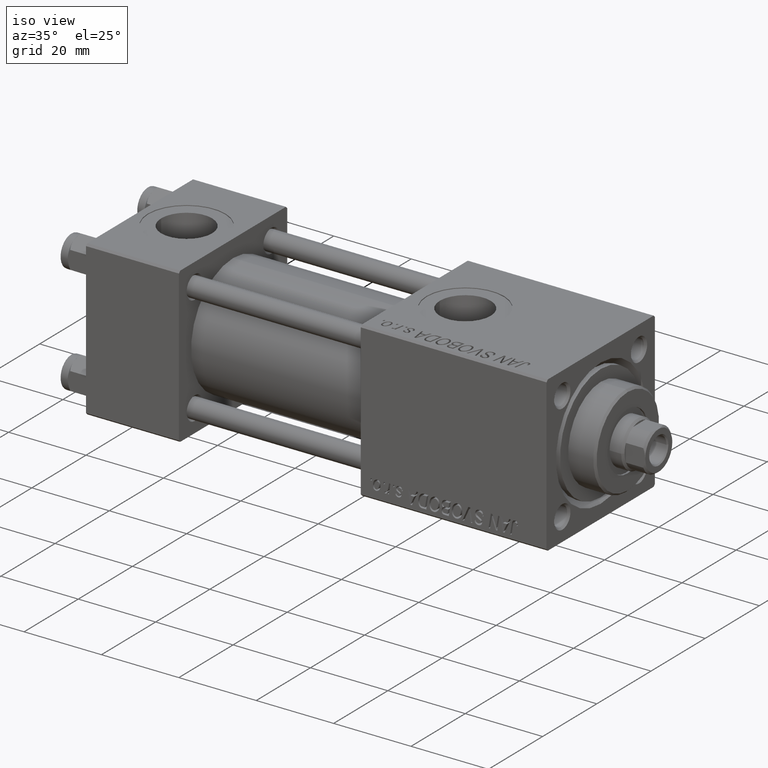
[diagram: clean part render]
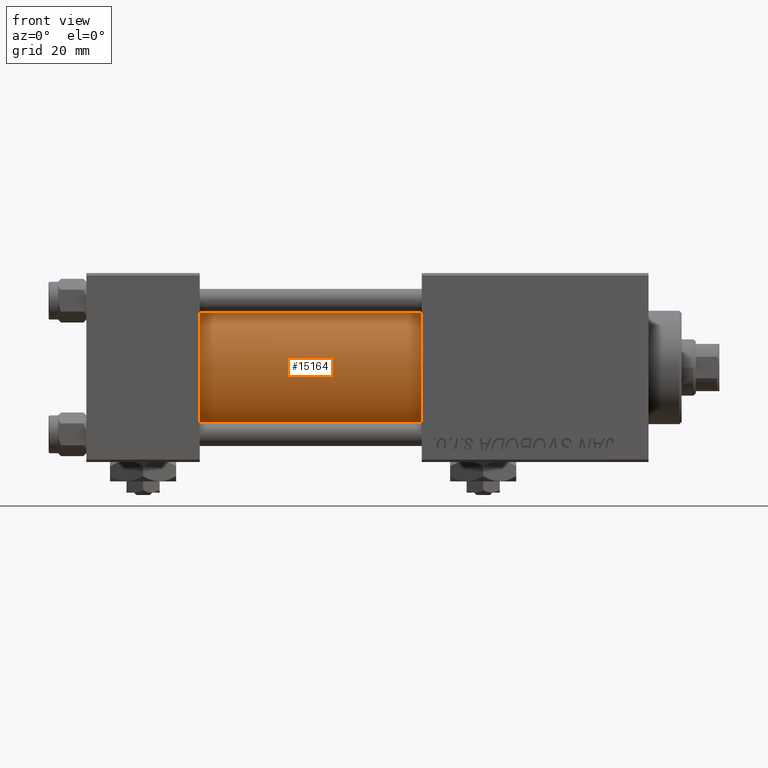
[diagram: tour spotlight — one face highlighted and labeled with its STEP entity id]
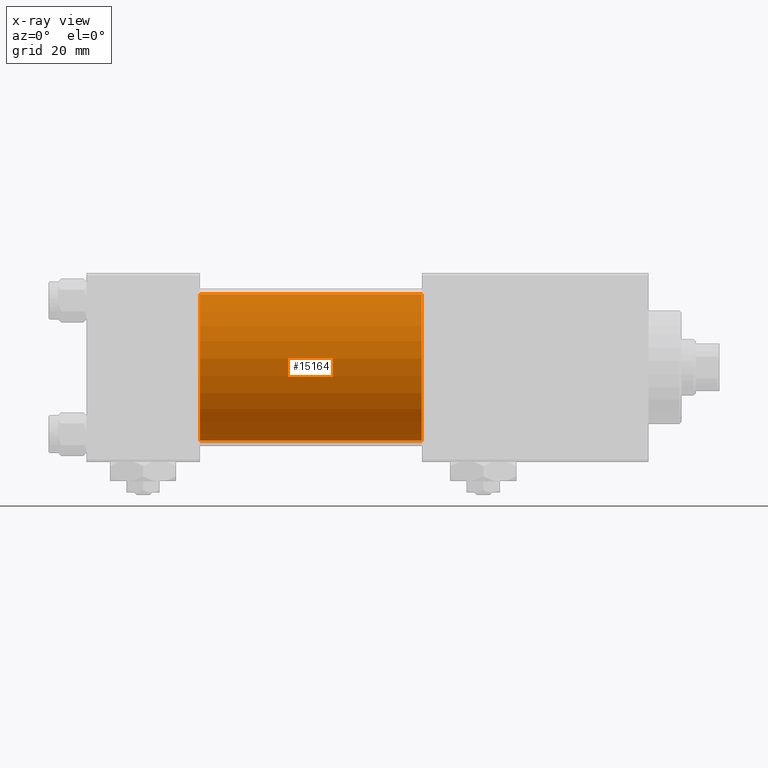
[diagram: x-ray of the same camera — body ghosted, this tour face saturated]
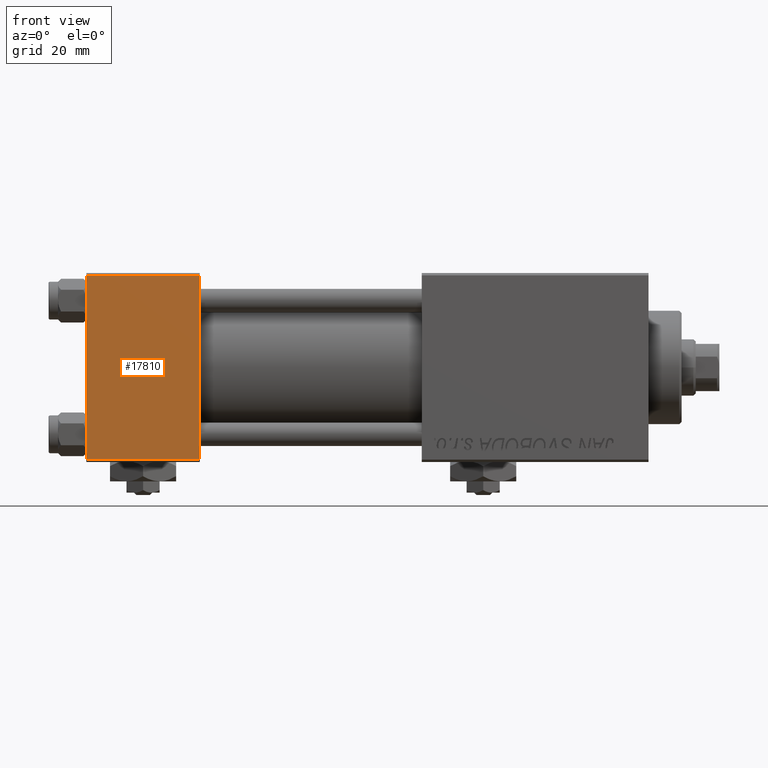
[diagram: tour spotlight — one face highlighted and labeled with its STEP entity id]
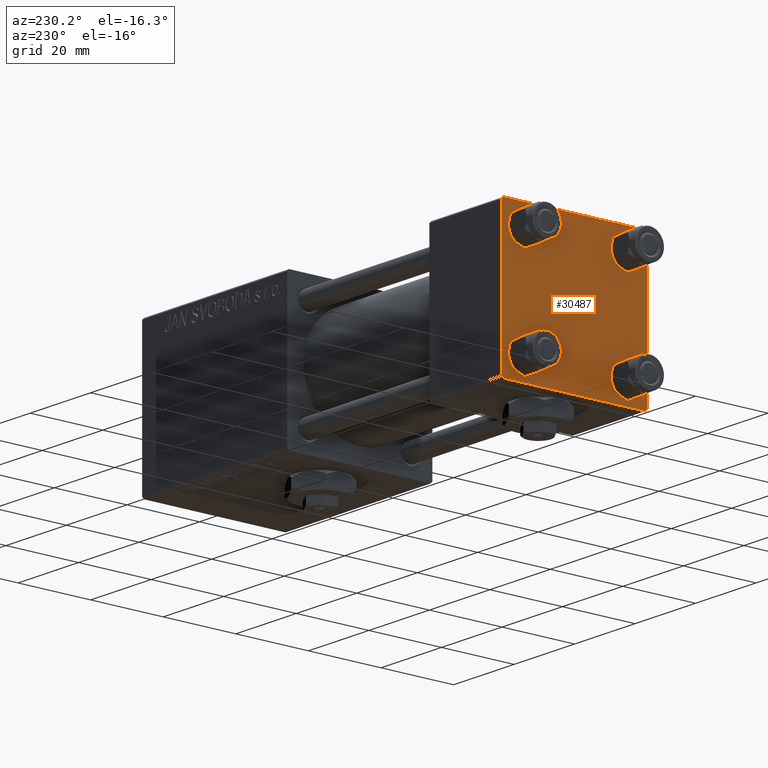
[diagram: tour spotlight — one face highlighted and labeled with its STEP entity id]
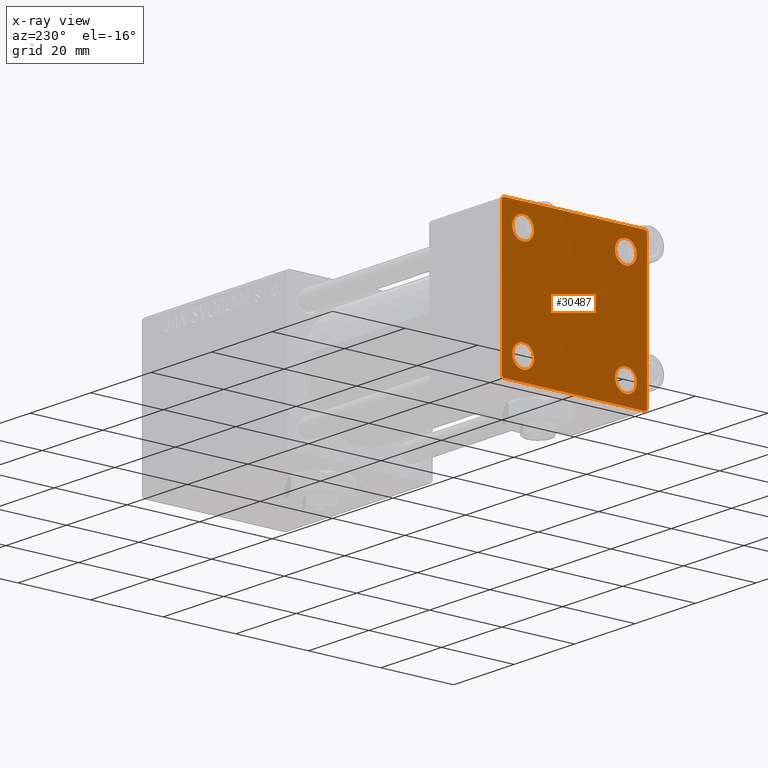
[diagram: x-ray of the same camera — body ghosted, this tour face saturated]
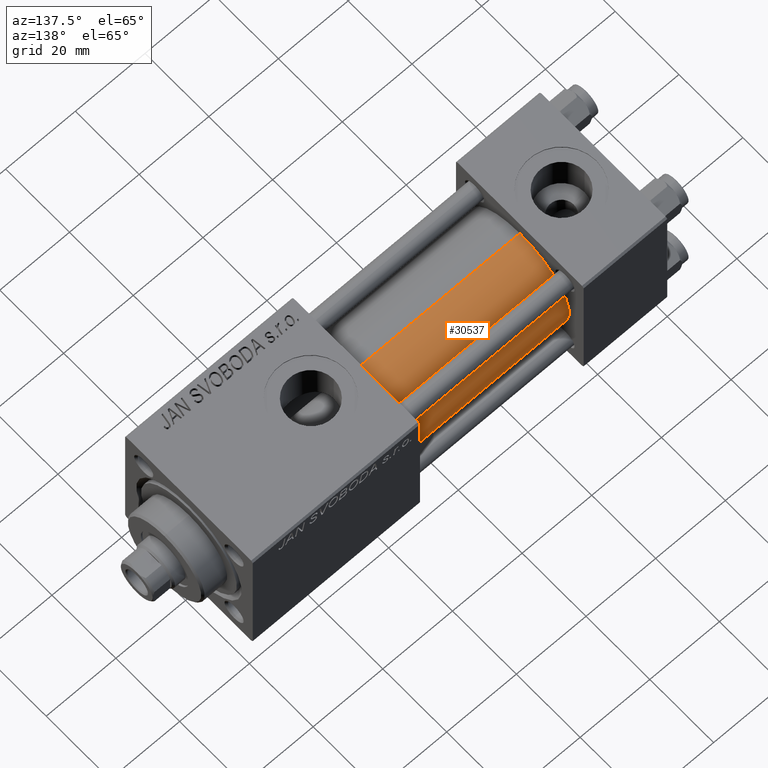
[diagram: tour spotlight — one face highlighted and labeled with its STEP entity id]
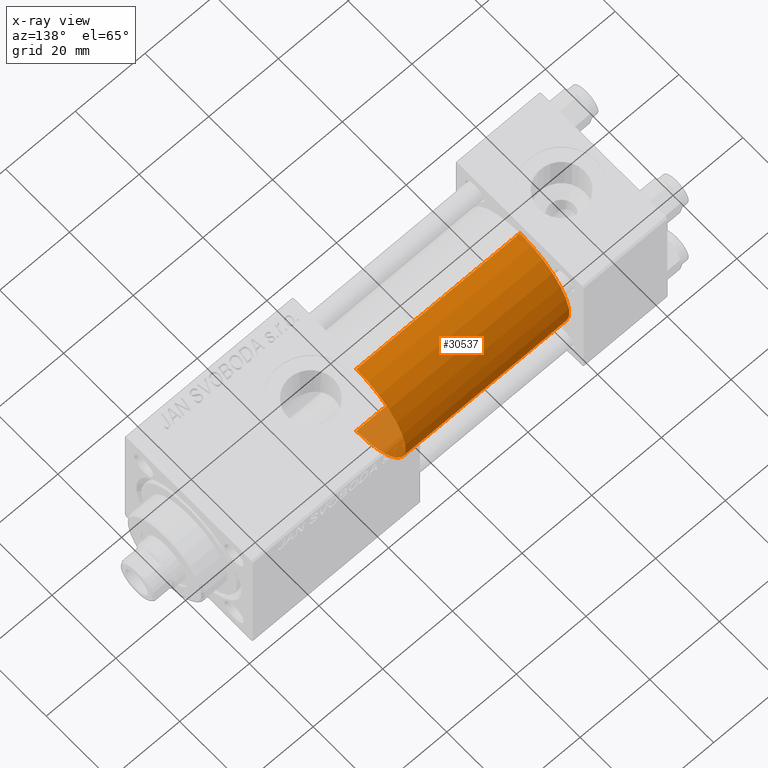
[diagram: x-ray of the same camera — body ghosted, this tour face saturated]
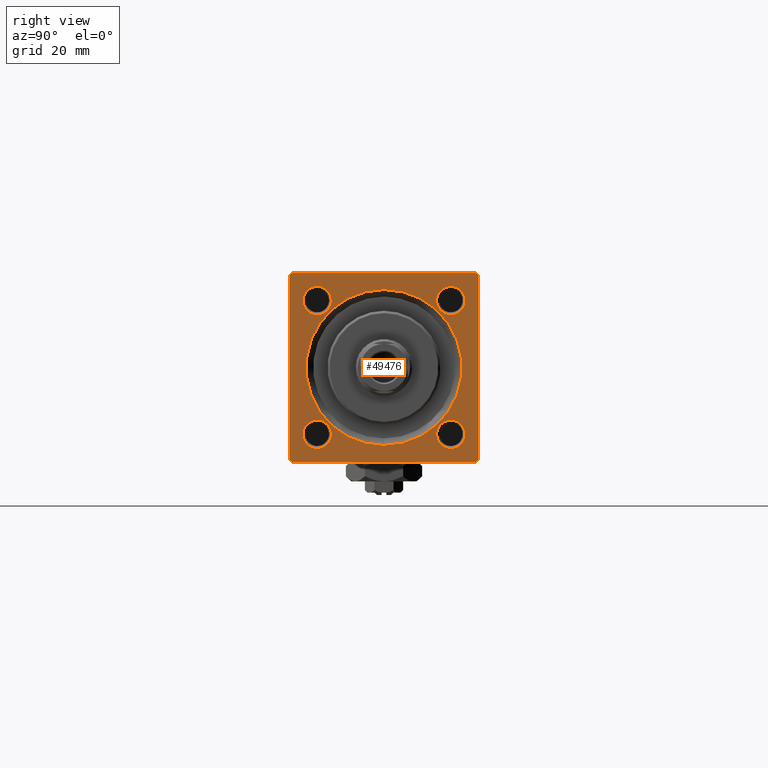
[diagram: tour spotlight — one face highlighted and labeled with its STEP entity id]
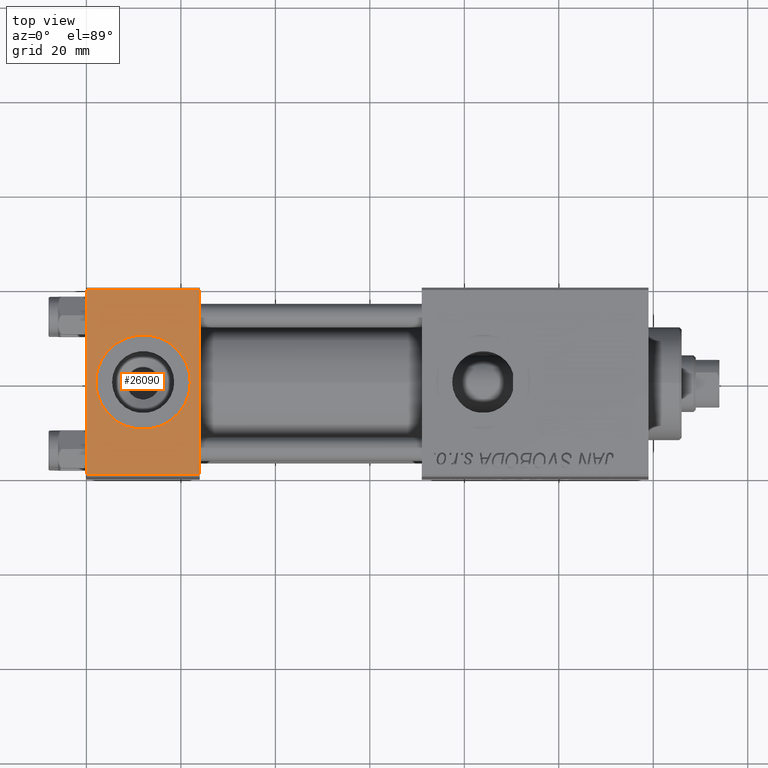
[diagram: tour spotlight — one face highlighted and labeled with its STEP entity id]
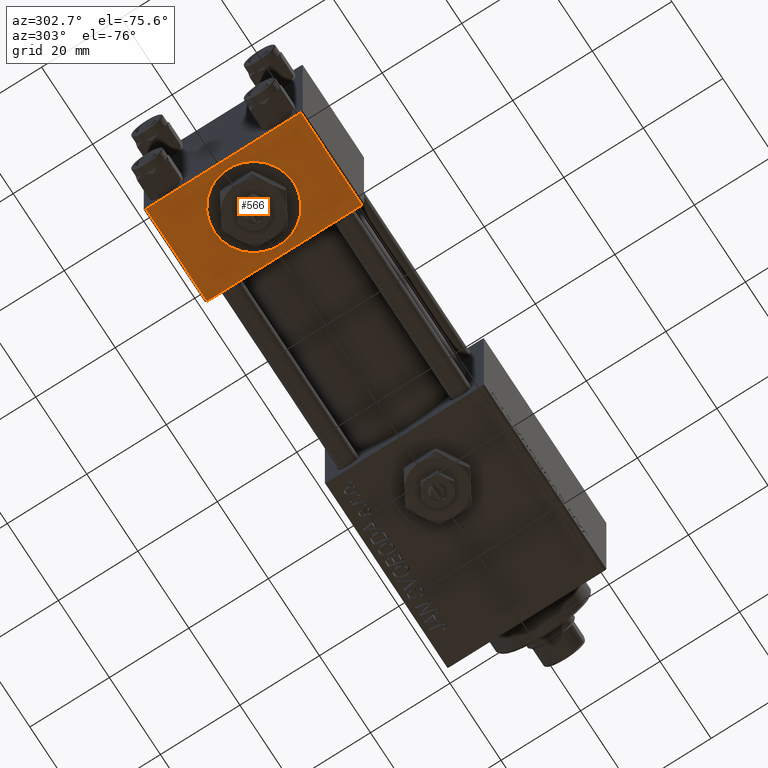
[diagram: tour spotlight — one face highlighted and labeled with its STEP entity id]
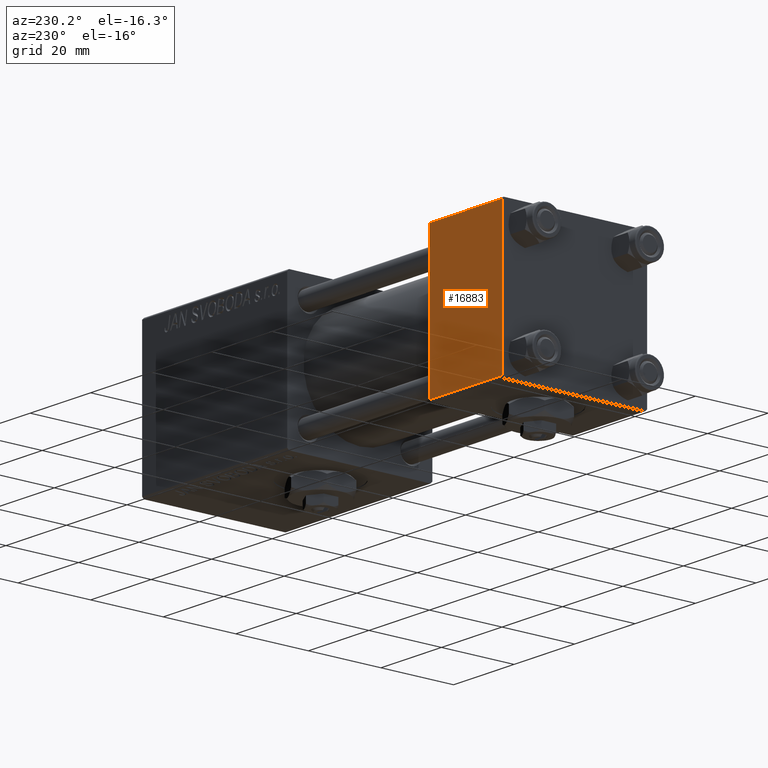
[diagram: tour spotlight — one face highlighted and labeled with its STEP entity id]
A machine part: a face-by-face anatomy tour. The part has 1248 B-rep faces; the first image is the clean iso view, then the 8 largest visible faces are spotlighted one at a time (largest first), each with its STEP entity span.

Face 1 — front view, entity #15164. An x-ray twin of the same camera follows (body ghosted, this face saturated) — the face is partly hidden behind the body. In plain terms, the highlighted cylindrical surface (partial cylindrical patch) has radius 15.5 mm, axis along (-1, -0, -0).
Definition (entity closure, byte-faithful):
#1867 = CIRCLE ( 'NONE', #42285, 15.50000000000000000 ) ;
#2436 = VERTEX_POINT ( 'NONE', #32975 ) ;
#3613 = EDGE_CURVE ( 'NONE', #3770, #37936, #49331, .T. ) ;
#3770 = VERTEX_POINT ( 'NONE', #31110 ) ;
#5019 = CARTESIAN_POINT ( 'NONE',  ( 71.00000000000001421, -2.602085213965210642E-15, 0.000000000000000000 ) ) ;
#6408 = DIRECTION ( 'NONE',  ( 0.000000000000000000, 0.000000000000000000, 1.000000000000000000 ) ) ;
#8446 = DIRECTION ( 'NONE',  ( 1.000000000000000000, 0.000000000000000000, 0.000000000000000000 ) ) ;
#8574 = ORIENTED_EDGE ( 'NONE', *, *, #15529, .T. ) ;
#10115 = CARTESIAN_POINT ( 'NONE',  ( 71.00000000000001421, -2.602085213965210642E-15, 0.000000000000000000 ) ) ;
#11541 = DIRECTION ( 'NONE',  ( 1.000000000000000000, 0.000000000000000000, 0.000000000000000000 ) ) ;
#12766 = ORIENTED_EDGE ( 'NONE', *, *, #3613, .T. ) ;
#14003 = CARTESIAN_POINT ( 'NONE',  ( 71.00000000000001421, -7.038826752868131828E-16, -15.50000000000000000 ) ) ;
#14237 = EDGE_CURVE ( 'NONE', #50098, #2436, #40903, .T. ) ;
#15164 = ADVANCED_FACE ( 'NONE', ( #33847 ), #18552, .T. ) ;
#15233 = VECTOR ( 'NONE', #30085, 1000.000000000000000 ) ;
#15529 = EDGE_CURVE ( 'NONE', #37936, #2436, #39611, .T. ) ;
#17439 = CARTESIAN_POINT ( 'NONE',  ( 71.00000000000001421, -2.602085213965210642E-15, 15.50000000000000000 ) ) ;
#18552 = CYLINDRICAL_SURFACE ( 'NONE', #22724, 15.50000000000000000 ) ;
#20072 = EDGE_CURVE ( 'NONE', #3770, #50098, #1867, .T. ) ;
#22724 = AXIS2_PLACEMENT_3D ( 'NONE', #10115, #45987, #6408 ) ;
#23293 = EDGE_LOOP ( 'NONE', ( #36461, #48030, #12766, #8574 ) ) ;
#29017 = DIRECTION ( 'NONE',  ( 0.000000000000000000, 0.000000000000000000, -1.000000000000000000 ) ) ;
#29194 = VECTOR ( 'NONE', #34279, 1000.000000000000000 ) ;
#30085 = DIRECTION ( 'NONE',  ( -1.000000000000000000, -0.000000000000000000, -0.000000000000000000 ) ) ;
#31110 = CARTESIAN_POINT ( 'NONE',  ( 71.00000000000001421, -2.602085213965210642E-15, 15.50000000000000000 ) ) ;
#32975 = CARTESIAN_POINT ( 'NONE',  ( 24.00000000000000000, -7.038826752868131828E-16, -15.50000000000000000 ) ) ;
#33847 = FACE_OUTER_BOUND ( 'NONE', #23293, .T. ) ;
#34279 = DIRECTION ( 'NONE',  ( -1.000000000000000000, -0.000000000000000000, -0.000000000000000000 ) ) ;
#34558 = AXIS2_PLACEMENT_3D ( 'NONE', #35278, #11541, #38978 ) ;
#35278 = CARTESIAN_POINT ( 'NONE',  ( 24.00000000000000000, -2.602085213965210642E-15, 0.000000000000000000 ) ) ;
#36461 = ORIENTED_EDGE ( 'NONE', *, *, #14237, .F. ) ;
#37936 = VERTEX_POINT ( 'NONE', #46690 ) ;
#38978 = DIRECTION ( 'NONE',  ( 0.000000000000000000, 0.000000000000000000, 1.000000000000000000 ) ) ;
#39611 = CIRCLE ( 'NONE', #34558, 15.50000000000000000 ) ;
#40903 = LINE ( 'NONE', #14003, #15233 ) ;
#41675 = CARTESIAN_POINT ( 'NONE',  ( 71.00000000000001421, -7.038826752868131828E-16, -15.50000000000000000 ) ) ;
#42285 = AXIS2_PLACEMENT_3D ( 'NONE', #5019, #8446, #29017 ) ;
#45987 = DIRECTION ( 'NONE',  ( -1.000000000000000000, -0.000000000000000000, -0.000000000000000000 ) ) ;
#46690 = CARTESIAN_POINT ( 'NONE',  ( 24.00000000000000000, -2.602085213965210642E-15, 15.50000000000000000 ) ) ;
#48030 = ORIENTED_EDGE ( 'NONE', *, *, #20072, .F. ) ;
#49331 = LINE ( 'NONE', #17439, #29194 ) ;
#50098 = VERTEX_POINT ( 'NONE', #41675 ) ;

Face 2 — front view, entity #17810. In plain terms, the highlighted planar face has unit normal (0, 1, 0).
Definition (entity closure, byte-faithful):
#3973 = EDGE_CURVE ( 'NONE', #40581, #34114, #39217, .T. ) ;
#5129 = CARTESIAN_POINT ( 'NONE',  ( 24.00000000000000000, -20.00000000000000355, 19.49999999999998224 ) ) ;
#8887 = EDGE_CURVE ( 'NONE', #20875, #34114, #34348, .T. ) ;
#10922 = VECTOR ( 'NONE', #47904, 1000.000000000000000 ) ;
#11583 = CARTESIAN_POINT ( 'NONE',  ( 24.00000000000000000, -20.00000000000000000, -19.49999999999999645 ) ) ;
#11655 = CARTESIAN_POINT ( 'NONE',  ( 24.00000000000000000, -20.00000000000000000, -19.49999999999999645 ) ) ;
#11974 = CARTESIAN_POINT ( 'NONE',  ( 24.00000000000000000, -20.00000000000000355, 19.49999999999998224 ) ) ;
#12103 = ORIENTED_EDGE ( 'NONE', *, *, #8887, .T. ) ;
#13067 = PLANE ( 'NONE',  #42211 ) ;
#13601 = FACE_OUTER_BOUND ( 'NONE', #31904, .T. ) ;
#14713 = EDGE_CURVE ( 'NONE', #18236, #20875, #28127, .T. ) ;
#15721 = VECTOR ( 'NONE', #22890, 1000.000000000000000 ) ;
#17240 = CARTESIAN_POINT ( 'NONE',  ( 0.000000000000000000, -20.00000000000000000, -19.49999999999999645 ) ) ;
#17295 = DIRECTION ( 'NONE',  ( 0.000000000000000000, -8.673617379884036705E-17, 1.000000000000000000 ) ) ;
#17810 = ADVANCED_FACE ( 'NONE', ( #13601 ), #13067, .F. ) ;
#18236 = VERTEX_POINT ( 'NONE', #38157 ) ;
#18806 = DIRECTION ( 'NONE',  ( 1.000000000000000000, 0.000000000000000000, 0.000000000000000000 ) ) ;
#20875 = VERTEX_POINT ( 'NONE', #17240 ) ;
#22870 = ORIENTED_EDGE ( 'NONE', *, *, #3973, .F. ) ;
#22890 = DIRECTION ( 'NONE',  ( 0.000000000000000000, 8.673617379884036705E-17, -1.000000000000000000 ) ) ;
#25193 = DIRECTION ( 'NONE',  ( -0.000000000000000000, 1.000000000000000000, 8.673617379884036705E-17 ) ) ;
#27606 = CARTESIAN_POINT ( 'NONE',  ( 0.000000000000000000, -20.00000000000000355, 19.99999999999998934 ) ) ;
#28127 = LINE ( 'NONE', #27606, #10922 ) ;
#29148 = CARTESIAN_POINT ( 'NONE',  ( 24.00000000000000000, -20.00000000000000355, 19.99999999999998934 ) ) ;
#31904 = EDGE_LOOP ( 'NONE', ( #40627, #12103, #22870, #33761 ) ) ;
#32483 = VECTOR ( 'NONE', #33601, 1000.000000000000000 ) ;
#33601 = DIRECTION ( 'NONE',  ( -1.000000000000000000, 0.000000000000000000, 0.000000000000000000 ) ) ;
#33761 = ORIENTED_EDGE ( 'NONE', *, *, #38721, .T. ) ;
#34114 = VERTEX_POINT ( 'NONE', #11655 ) ;
#34348 = LINE ( 'NONE', #11583, #52094 ) ;
#35256 = CARTESIAN_POINT ( 'NONE',  ( 24.00000000000000000, -20.00000000000000355, 19.99999999999998934 ) ) ;
#38157 = CARTESIAN_POINT ( 'NONE',  ( 0.000000000000000000, -20.00000000000000355, 19.49999999999998224 ) ) ;
#38721 = EDGE_CURVE ( 'NONE', #40581, #18236, #48898, .T. ) ;
#39217 = LINE ( 'NONE', #35256, #15721 ) ;
#40581 = VERTEX_POINT ( 'NONE', #11974 ) ;
#40627 = ORIENTED_EDGE ( 'NONE', *, *, #14713, .T. ) ;
#42211 = AXIS2_PLACEMENT_3D ( 'NONE', #29148, #25193, #17295 ) ;
#47904 = DIRECTION ( 'NONE',  ( 0.000000000000000000, 8.673617379884036705E-17, -1.000000000000000000 ) ) ;
#48898 = LINE ( 'NONE', #5129, #32483 ) ;
#52094 = VECTOR ( 'NONE', #18806, 1000.000000000000000 ) ;

Face 3 — auxiliary view, entity #30487. An x-ray twin of the same camera follows (body ghosted, this face saturated) — the face is partly hidden behind the body. In plain terms, the highlighted planar face has unit normal (-1, 0, 0).
Definition (entity closure, byte-faithful):
#557 = ORIENTED_EDGE ( 'NONE', *, *, #2024, .T. ) ;
#623 = CIRCLE ( 'NONE', #32618, 2.999999999999983569 ) ;
#1461 = CARTESIAN_POINT ( 'NONE',  ( 0.000000000000000000, 14.14999999999999858, 14.15000000000000036 ) ) ;
#1829 = CARTESIAN_POINT ( 'NONE',  ( 0.000000000000000000, -19.75000000000020961, -19.74999999999979394 ) ) ;
#2024 = EDGE_CURVE ( 'NONE', #49075, #45527, #48128, .T. ) ;
#2345 = FACE_BOUND ( 'NONE', #32686, .T. ) ;
#3786 = CARTESIAN_POINT ( 'NONE',  ( 0.000000000000000000, -14.14999999999999503, -14.15000000000000391 ) ) ;
#4289 = CARTESIAN_POINT ( 'NONE',  ( -0.000000000000000000, 19.74999999999986855, -19.75000000000014211 ) ) ;
#4296 = CIRCLE ( 'NONE', #24533, 2.999999999999983569 ) ;
#4442 = CARTESIAN_POINT ( 'NONE',  ( 0.000000000000000000, 20.00000000000000000, 20.00000000000000000 ) ) ;
#6040 = DIRECTION ( 'NONE',  ( 0.000000000000000000, -0.7071067811865401342, 0.7071067811865549002 ) ) ;
#6786 = AXIS2_PLACEMENT_3D ( 'NONE', #3786, #20151, #35945 ) ;
#6852 = LINE ( 'NONE', #43486, #45719 ) ;
#7557 = LINE ( 'NONE', #19451, #22156 ) ;
#8242 = DIRECTION ( 'NONE',  ( 0.000000000000000000, 0.000000000000000000, 1.000000000000000000 ) ) ;
#8282 = ORIENTED_EDGE ( 'NONE', *, *, #12946, .T. ) ;
#8678 = ORIENTED_EDGE ( 'NONE', *, *, #46626, .T. ) ;
#8811 = DIRECTION ( 'NONE',  ( 1.000000000000000000, 0.000000000000000000, 0.000000000000000000 ) ) ;
#9433 = DIRECTION ( 'NONE',  ( 1.000000000000000000, 0.000000000000000000, 0.000000000000000000 ) ) ;
#9455 = CARTESIAN_POINT ( 'NONE',  ( 0.000000000000000000, 19.50000000000000000, 20.00000000000000000 ) ) ;
#9661 = CARTESIAN_POINT ( 'NONE',  ( 0.000000000000000000, 14.14999999999999858, -17.14999999999998437 ) ) ;
#9903 = DIRECTION ( 'NONE',  ( 0.000000000000000000, 0.000000000000000000, 1.000000000000000000 ) ) ;
#10002 = FACE_BOUND ( 'NONE', #40611, .T. ) ;
#10922 = VECTOR ( 'NONE', #47904, 1000.000000000000000 ) ;
#11295 = AXIS2_PLACEMENT_3D ( 'NONE', #33339, #8811, #17528 ) ;
#11604 = VERTEX_POINT ( 'NONE', #43025 ) ;
#12193 = AXIS2_PLACEMENT_3D ( 'NONE', #33027, #46132, #38224 ) ;
#12511 = EDGE_LOOP ( 'NONE', ( #8282, #17819 ) ) ;
#12730 = LINE ( 'NONE', #4289, #42699 ) ;
#12906 = LINE ( 'NONE', #45339, #30884 ) ;
#12946 = EDGE_CURVE ( 'NONE', #22459, #48676, #47180, .T. ) ;
#12994 = DIRECTION ( 'NONE',  ( 1.000000000000000000, 0.000000000000000000, 0.000000000000000000 ) ) ;
#13441 = DIRECTION ( 'NONE',  ( 0.000000000000000000, -1.000000000000000000, 1.734723475976807094E-16 ) ) ;
#13470 = AXIS2_PLACEMENT_3D ( 'NONE', #36641, #16351, #48243 ) ;
#14713 = EDGE_CURVE ( 'NONE', #18236, #20875, #28127, .T. ) ;
#15272 = VERTEX_POINT ( 'NONE', #18757 ) ;
#15370 = EDGE_CURVE ( 'NONE', #45527, #49075, #23591, .T. ) ;
#15736 = DIRECTION ( 'NONE',  ( 0.000000000000000000, 0.7071067811865425767, -0.7071067811865525687 ) ) ;
#16144 = AXIS2_PLACEMENT_3D ( 'NONE', #19884, #47037, #50722 ) ;
#16203 = CARTESIAN_POINT ( 'NONE',  ( 0.000000000000000000, -14.14999999999999503, 11.15000000000002345 ) ) ;
#16351 = DIRECTION ( 'NONE',  ( 1.000000000000000000, 0.000000000000000000, 0.000000000000000000 ) ) ;
#16457 = VERTEX_POINT ( 'NONE', #31077 ) ;
#16688 = FACE_BOUND ( 'NONE', #12511, .T. ) ;
#17240 = CARTESIAN_POINT ( 'NONE',  ( 0.000000000000000000, -20.00000000000000000, -19.49999999999999645 ) ) ;
#17528 = DIRECTION ( 'NONE',  ( 0.000000000000000000, 0.000000000000000000, 1.000000000000000000 ) ) ;
#17819 = ORIENTED_EDGE ( 'NONE', *, *, #19684, .T. ) ;
#17856 = EDGE_CURVE ( 'NONE', #15272, #23141, #4296, .T. ) ;
#18236 = VERTEX_POINT ( 'NONE', #38157 ) ;
#18567 = CARTESIAN_POINT ( 'NONE',  ( 0.000000000000000000, 14.14999999999999858, 11.15000000000001990 ) ) ;
#18757 = CARTESIAN_POINT ( 'NONE',  ( 0.000000000000000000, 14.14999999999999858, 17.14999999999998437 ) ) ;
#18819 = CARTESIAN_POINT ( 'NONE',  ( 0.000000000000000000, 20.00000000000000000, 19.49999999999999289 ) ) ;
#19451 = CARTESIAN_POINT ( 'NONE',  ( -0.000000000000000000, 19.75000000000013500, 19.74999999999986144 ) ) ;
#19627 = AXIS2_PLACEMENT_3D ( 'NONE', #42833, #34150, #9903 ) ;
#19684 = EDGE_CURVE ( 'NONE', #48676, #22459, #49821, .T. ) ;
#19719 = ORIENTED_EDGE ( 'NONE', *, *, #15370, .T. ) ;
#19884 = CARTESIAN_POINT ( 'NONE',  ( 0.000000000000000000, 14.14999999999999858, -14.15000000000000036 ) ) ;
#20151 = DIRECTION ( 'NONE',  ( 1.000000000000000000, 0.000000000000000000, 0.000000000000000000 ) ) ;
#20615 = CIRCLE ( 'NONE', #11295, 2.999999999999983569 ) ;
#20875 = VERTEX_POINT ( 'NONE', #17240 ) ;
#21325 = CARTESIAN_POINT ( 'NONE',  ( 0.000000000000000000, -14.14999999999999503, -14.15000000000000391 ) ) ;
#21589 = DIRECTION ( 'NONE',  ( 0.000000000000000000, 0.000000000000000000, 1.000000000000000000 ) ) ;
#22144 = EDGE_CURVE ( 'NONE', #45067, #35144, #6852, .T. ) ;
#22156 = VECTOR ( 'NONE', #15736, 999.9999999999998863 ) ;
#22459 = VERTEX_POINT ( 'NONE', #28229 ) ;
#23132 = VERTEX_POINT ( 'NONE', #50454 ) ;
#23141 = VERTEX_POINT ( 'NONE', #18567 ) ;
#23560 = VECTOR ( 'NONE', #48739, 1000.000000000000000 ) ;
#23591 = CIRCLE ( 'NONE', #13470, 2.999999999999983569 ) ;
#24114 = ORIENTED_EDGE ( 'NONE', *, *, #26369, .T. ) ;
#24533 = AXIS2_PLACEMENT_3D ( 'NONE', #1461, #29674, #45754 ) ;
#24589 = CARTESIAN_POINT ( 'NONE',  ( 0.000000000000000000, 19.50000000000000711, -20.00000000000000711 ) ) ;
#24862 = CARTESIAN_POINT ( 'NONE',  ( 0.000000000000000000, 14.14999999999999858, 14.15000000000000036 ) ) ;
#25621 = LINE ( 'NONE', #37491, #34955 ) ;
#25833 = PLANE ( 'NONE',  #12193 ) ;
#26328 = LINE ( 'NONE', #1829, #46684 ) ;
#26339 = FACE_OUTER_BOUND ( 'NONE', #29221, .T. ) ;
#26369 = EDGE_CURVE ( 'NONE', #37408, #11604, #20615, .T. ) ;
#26630 = DIRECTION ( 'NONE',  ( 0.000000000000000000, 0.000000000000000000, -1.000000000000000000 ) ) ;
#26942 = ORIENTED_EDGE ( 'NONE', *, *, #17856, .T. ) ;
#27606 = CARTESIAN_POINT ( 'NONE',  ( 0.000000000000000000, -20.00000000000000355, 19.99999999999998934 ) ) ;
#28127 = LINE ( 'NONE', #27606, #10922 ) ;
#28229 = CARTESIAN_POINT ( 'NONE',  ( 0.000000000000000000, -14.14999999999999503, -11.15000000000000036 ) ) ;
#28749 = EDGE_CURVE ( 'NONE', #23132, #20875, #26328, .T. ) ;
#28969 = LINE ( 'NONE', #4442, #23560 ) ;
#29221 = EDGE_LOOP ( 'NONE', ( #30603, #8678, #41218, #48787, #50882, #44197, #42210, #40459 ) ) ;
#29583 = DIRECTION ( 'NONE',  ( -0.000000000000000000, 0.7071067811865500152, 0.7071067811865451302 ) ) ;
#29674 = DIRECTION ( 'NONE',  ( 1.000000000000000000, 0.000000000000000000, 0.000000000000000000 ) ) ;
#30466 = AXIS2_PLACEMENT_3D ( 'NONE', #21325, #9433, #21589 ) ;
#30487 = ADVANCED_FACE ( 'NONE', ( #10002, #16688, #46382, #2345, #26339 ), #25833, .T. ) ;
#30603 = ORIENTED_EDGE ( 'NONE', *, *, #22144, .T. ) ;
#30884 = VECTOR ( 'NONE', #13441, 1000.000000000000000 ) ;
#31077 = CARTESIAN_POINT ( 'NONE',  ( 0.000000000000000000, -19.49999999999999289, 19.99999999999998934 ) ) ;
#32442 = EDGE_CURVE ( 'NONE', #37203, #45067, #7557, .T. ) ;
#32618 = AXIS2_PLACEMENT_3D ( 'NONE', #24862, #12994, #8242 ) ;
#32686 = EDGE_LOOP ( 'NONE', ( #26942, #50431 ) ) ;
#32714 = EDGE_CURVE ( 'NONE', #11604, #37408, #42342, .T. ) ;
#33027 = CARTESIAN_POINT ( 'NONE',  ( 0.000000000000000000, 0.000000000000000000, 0.000000000000000000 ) ) ;
#33171 = CARTESIAN_POINT ( 'NONE',  ( 0.000000000000000000, 20.00000000000000000, -19.50000000000002132 ) ) ;
#33289 = DIRECTION ( 'NONE',  ( -0.000000000000000000, -0.7071067811865524577, -0.7071067811865426878 ) ) ;
#33339 = CARTESIAN_POINT ( 'NONE',  ( 0.000000000000000000, -14.14999999999999503, 14.15000000000000391 ) ) ;
#34150 = DIRECTION ( 'NONE',  ( 1.000000000000000000, 0.000000000000000000, 0.000000000000000000 ) ) ;
#34955 = VECTOR ( 'NONE', #29583, 1000.000000000000114 ) ;
#35144 = VERTEX_POINT ( 'NONE', #33171 ) ;
#35410 = CARTESIAN_POINT ( 'NONE',  ( 0.000000000000000000, -14.14999999999999503, -17.15000000000000924 ) ) ;
#35818 = EDGE_LOOP ( 'NONE', ( #557, #19719 ) ) ;
#35868 = CARTESIAN_POINT ( 'NONE',  ( 0.000000000000000000, 14.14999999999999858, -11.15000000000001812 ) ) ;
#35945 = DIRECTION ( 'NONE',  ( 0.000000000000000000, 0.000000000000000000, 1.000000000000000000 ) ) ;
#36641 = CARTESIAN_POINT ( 'NONE',  ( 0.000000000000000000, 14.14999999999999858, -14.15000000000000036 ) ) ;
#37203 = VERTEX_POINT ( 'NONE', #9455 ) ;
#37408 = VERTEX_POINT ( 'NONE', #16203 ) ;
#37491 = CARTESIAN_POINT ( 'NONE',  ( -0.000000000000000000, -19.74999999999992539, 19.75000000000006395 ) ) ;
#37647 = VERTEX_POINT ( 'NONE', #24589 ) ;
#37745 = EDGE_CURVE ( 'NONE', #18236, #16457, #25621, .T. ) ;
#38157 = CARTESIAN_POINT ( 'NONE',  ( 0.000000000000000000, -20.00000000000000355, 19.49999999999998224 ) ) ;
#38224 = DIRECTION ( 'NONE',  ( -0.000000000000000000, 0.000000000000000000, 1.000000000000000000 ) ) ;
#39484 = ORIENTED_EDGE ( 'NONE', *, *, #32714, .T. ) ;
#40459 = ORIENTED_EDGE ( 'NONE', *, *, #32442, .T. ) ;
#40611 = EDGE_LOOP ( 'NONE', ( #39484, #24114 ) ) ;
#41218 = ORIENTED_EDGE ( 'NONE', *, *, #45183, .T. ) ;
#42210 = ORIENTED_EDGE ( 'NONE', *, *, #51280, .F. ) ;
#42342 = CIRCLE ( 'NONE', #19627, 2.999999999999983569 ) ;
#42699 = VECTOR ( 'NONE', #33289, 1000.000000000000000 ) ;
#42833 = CARTESIAN_POINT ( 'NONE',  ( 0.000000000000000000, -14.14999999999999503, 14.15000000000000391 ) ) ;
#43025 = CARTESIAN_POINT ( 'NONE',  ( 0.000000000000000000, -14.14999999999999503, 17.14999999999998792 ) ) ;
#43486 = CARTESIAN_POINT ( 'NONE',  ( 0.000000000000000000, 20.00000000000000000, 20.00000000000000000 ) ) ;
#44197 = ORIENTED_EDGE ( 'NONE', *, *, #37745, .T. ) ;
#45067 = VERTEX_POINT ( 'NONE', #18819 ) ;
#45183 = EDGE_CURVE ( 'NONE', #37647, #23132, #12906, .T. ) ;
#45339 = CARTESIAN_POINT ( 'NONE',  ( 0.000000000000000000, 20.00000000000000000, -20.00000000000000711 ) ) ;
#45527 = VERTEX_POINT ( 'NONE', #9661 ) ;
#45719 = VECTOR ( 'NONE', #26630, 1000.000000000000000 ) ;
#45754 = DIRECTION ( 'NONE',  ( 0.000000000000000000, 0.000000000000000000, 1.000000000000000000 ) ) ;
#46132 = DIRECTION ( 'NONE',  ( -1.000000000000000000, 0.000000000000000000, -0.000000000000000000 ) ) ;
#46382 = FACE_BOUND ( 'NONE', #35818, .T. ) ;
#46519 = EDGE_CURVE ( 'NONE', #23141, #15272, #623, .T. ) ;
#46626 = EDGE_CURVE ( 'NONE', #35144, #37647, #12730, .T. ) ;
#46684 = VECTOR ( 'NONE', #6040, 1000.000000000000000 ) ;
#47037 = DIRECTION ( 'NONE',  ( 1.000000000000000000, 0.000000000000000000, 0.000000000000000000 ) ) ;
#47180 = CIRCLE ( 'NONE', #6786, 3.000000000000004441 ) ;
#47904 = DIRECTION ( 'NONE',  ( 0.000000000000000000, 8.673617379884036705E-17, -1.000000000000000000 ) ) ;
#48128 = CIRCLE ( 'NONE', #16144, 2.999999999999983569 ) ;
#48243 = DIRECTION ( 'NONE',  ( 0.000000000000000000, 0.000000000000000000, 1.000000000000000000 ) ) ;
#48676 = VERTEX_POINT ( 'NONE', #35410 ) ;
#48739 = DIRECTION ( 'NONE',  ( 0.000000000000000000, -1.000000000000000000, -2.602085213965210149E-16 ) ) ;
#48787 = ORIENTED_EDGE ( 'NONE', *, *, #28749, .T. ) ;
#49075 = VERTEX_POINT ( 'NONE', #35868 ) ;
#49821 = CIRCLE ( 'NONE', #30466, 3.000000000000004441 ) ;
#50431 = ORIENTED_EDGE ( 'NONE', *, *, #46519, .T. ) ;
#50454 = CARTESIAN_POINT ( 'NONE',  ( 0.000000000000000000, -19.50000000000000711, -20.00000000000000000 ) ) ;
#50722 = DIRECTION ( 'NONE',  ( 0.000000000000000000, 0.000000000000000000, 1.000000000000000000 ) ) ;
#50882 = ORIENTED_EDGE ( 'NONE', *, *, #14713, .F. ) ;
#51280 = EDGE_CURVE ( 'NONE', #37203, #16457, #28969, .T. ) ;

Face 4 — auxiliary view, entity #30537. An x-ray twin of the same camera follows (body ghosted, this face saturated) — the face is partly hidden behind the body. In plain terms, the highlighted cylindrical surface (partial cylindrical patch) has radius 15.5 mm, axis along (-1, -0, -0).
Definition (entity closure, byte-faithful):
#2304 = DIRECTION ( 'NONE',  ( 1.000000000000000000, 0.000000000000000000, 0.000000000000000000 ) ) ;
#2436 = VERTEX_POINT ( 'NONE', #32975 ) ;
#3613 = EDGE_CURVE ( 'NONE', #3770, #37936, #49331, .T. ) ;
#3770 = VERTEX_POINT ( 'NONE', #31110 ) ;
#6151 = DIRECTION ( 'NONE',  ( 1.000000000000000000, 0.000000000000000000, 0.000000000000000000 ) ) ;
#7460 = CIRCLE ( 'NONE', #17584, 15.50000000000000000 ) ;
#7600 = DIRECTION ( 'NONE',  ( 0.000000000000000000, 0.000000000000000000, 1.000000000000000000 ) ) ;
#8074 = EDGE_CURVE ( 'NONE', #50098, #3770, #7460, .T. ) ;
#8597 = DIRECTION ( 'NONE',  ( 0.000000000000000000, 0.000000000000000000, 1.000000000000000000 ) ) ;
#10107 = CARTESIAN_POINT ( 'NONE',  ( 24.00000000000000000, -2.602085213965210642E-15, 0.000000000000000000 ) ) ;
#11332 = AXIS2_PLACEMENT_3D ( 'NONE', #51626, #38987, #7600 ) ;
#11782 = ORIENTED_EDGE ( 'NONE', *, *, #43682, .T. ) ;
#14003 = CARTESIAN_POINT ( 'NONE',  ( 71.00000000000001421, -7.038826752868131828E-16, -15.50000000000000000 ) ) ;
#14237 = EDGE_CURVE ( 'NONE', #50098, #2436, #40903, .T. ) ;
#15233 = VECTOR ( 'NONE', #30085, 1000.000000000000000 ) ;
#17439 = CARTESIAN_POINT ( 'NONE',  ( 71.00000000000001421, -2.602085213965210642E-15, 15.50000000000000000 ) ) ;
#17584 = AXIS2_PLACEMENT_3D ( 'NONE', #21854, #2304, #30256 ) ;
#21854 = CARTESIAN_POINT ( 'NONE',  ( 71.00000000000001421, -2.602085213965210642E-15, 0.000000000000000000 ) ) ;
#22925 = FACE_OUTER_BOUND ( 'NONE', #23344, .T. ) ;
#23344 = EDGE_LOOP ( 'NONE', ( #28052, #41885, #11782, #26874 ) ) ;
#26635 = CIRCLE ( 'NONE', #39288, 15.50000000000000000 ) ;
#26874 = ORIENTED_EDGE ( 'NONE', *, *, #3613, .F. ) ;
#28052 = ORIENTED_EDGE ( 'NONE', *, *, #8074, .F. ) ;
#29194 = VECTOR ( 'NONE', #34279, 1000.000000000000000 ) ;
#30085 = DIRECTION ( 'NONE',  ( -1.000000000000000000, -0.000000000000000000, -0.000000000000000000 ) ) ;
#30256 = DIRECTION ( 'NONE',  ( 0.000000000000000000, 0.000000000000000000, -1.000000000000000000 ) ) ;
#30537 = ADVANCED_FACE ( 'NONE', ( #22925 ), #47164, .T. ) ;
#31110 = CARTESIAN_POINT ( 'NONE',  ( 71.00000000000001421, -2.602085213965210642E-15, 15.50000000000000000 ) ) ;
#32975 = CARTESIAN_POINT ( 'NONE',  ( 24.00000000000000000, -7.038826752868131828E-16, -15.50000000000000000 ) ) ;
#34279 = DIRECTION ( 'NONE',  ( -1.000000000000000000, -0.000000000000000000, -0.000000000000000000 ) ) ;
#37936 = VERTEX_POINT ( 'NONE', #46690 ) ;
#38987 = DIRECTION ( 'NONE',  ( -1.000000000000000000, -0.000000000000000000, -0.000000000000000000 ) ) ;
#39288 = AXIS2_PLACEMENT_3D ( 'NONE', #10107, #6151, #8597 ) ;
#40903 = LINE ( 'NONE', #14003, #15233 ) ;
#41675 = CARTESIAN_POINT ( 'NONE',  ( 71.00000000000001421, -7.038826752868131828E-16, -15.50000000000000000 ) ) ;
#41885 = ORIENTED_EDGE ( 'NONE', *, *, #14237, .T. ) ;
#43682 = EDGE_CURVE ( 'NONE', #2436, #37936, #26635, .T. ) ;
#46690 = CARTESIAN_POINT ( 'NONE',  ( 24.00000000000000000, -2.602085213965210642E-15, 15.50000000000000000 ) ) ;
#47164 = CYLINDRICAL_SURFACE ( 'NONE', #11332, 15.50000000000000000 ) ;
#49331 = LINE ( 'NONE', #17439, #29194 ) ;
#50098 = VERTEX_POINT ( 'NONE', #41675 ) ;
#51626 = CARTESIAN_POINT ( 'NONE',  ( 71.00000000000001421, -2.602085213965210642E-15, 0.000000000000000000 ) ) ;

Face 5 — right view, entity #49476. In plain terms, the highlighted planar face has unit normal (-1, 0, 0).
Definition (entity closure, byte-faithful):
#620 = CARTESIAN_POINT ( 'NONE',  ( 119.0000000000000142, 14.14999999999999858, 11.14999999999996838 ) ) ;
#646 = LINE ( 'NONE', #13839, #2084 ) ;
#756 = CARTESIAN_POINT ( 'NONE',  ( 119.0000000000000142, 14.14999999999999858, -14.15000000000000036 ) ) ;
#972 = CARTESIAN_POINT ( 'NONE',  ( 119.0000000000000142, -20.00000000000000355, 19.99999999999999645 ) ) ;
#1424 = ORIENTED_EDGE ( 'NONE', *, *, #47818, .F. ) ;
#1653 = EDGE_CURVE ( 'NONE', #5018, #17896, #13644, .T. ) ;
#1731 = VERTEX_POINT ( 'NONE', #50787 ) ;
#2084 = VECTOR ( 'NONE', #8559, 1000.000000000000114 ) ;
#2392 = CARTESIAN_POINT ( 'NONE',  ( 119.0000000000000142, 19.99999999999999645, 19.49999999999998579 ) ) ;
#2506 = VERTEX_POINT ( 'NONE', #34265 ) ;
#3256 = DIRECTION ( 'NONE',  ( -0.000000000000000000, 0.000000000000000000, 1.000000000000000000 ) ) ;
#3297 = VERTEX_POINT ( 'NONE', #21733 ) ;
#3329 = ORIENTED_EDGE ( 'NONE', *, *, #46125, .T. ) ;
#3939 = EDGE_LOOP ( 'NONE', ( #45951, #37025 ) ) ;
#4269 = DIRECTION ( 'NONE',  ( -1.000000000000000000, -0.000000000000000000, -0.000000000000000000 ) ) ;
#4394 = VERTEX_POINT ( 'NONE', #51237 ) ;
#4673 = LINE ( 'NONE', #17071, #9053 ) ;
#4682 = DIRECTION ( 'NONE',  ( 0.000000000000000000, 0.000000000000000000, 1.000000000000000000 ) ) ;
#5018 = VERTEX_POINT ( 'NONE', #18662 ) ;
#6285 = EDGE_CURVE ( 'NONE', #3297, #6725, #26734, .T. ) ;
#6355 = AXIS2_PLACEMENT_3D ( 'NONE', #40398, #4269, #19604 ) ;
#6725 = VERTEX_POINT ( 'NONE', #35836 ) ;
#6792 = CARTESIAN_POINT ( 'NONE',  ( 119.0000000000000142, 19.49999999999996803, 20.00000000000000000 ) ) ;
#7184 = CIRCLE ( 'NONE', #6355, 16.50000000000001421 ) ;
#7733 = FACE_BOUND ( 'NONE', #3939, .T. ) ;
#7750 = LINE ( 'NONE', #43876, #8617 ) ;
#8442 = DIRECTION ( 'NONE',  ( -1.000000000000000000, -0.000000000000000000, -0.000000000000000000 ) ) ;
#8448 = CARTESIAN_POINT ( 'NONE',  ( 119.0000000000000142, 19.99999999999999645, -20.00000000000000000 ) ) ;
#8559 = DIRECTION ( 'NONE',  ( -0.000000000000000000, -0.7071067811865573427, -0.7071067811865376918 ) ) ;
#8617 = VECTOR ( 'NONE', #43612, 1000.000000000000000 ) ;
#8637 = VERTEX_POINT ( 'NONE', #620 ) ;
#9053 = VECTOR ( 'NONE', #48701, 1000.000000000000114 ) ;
#9460 = EDGE_CURVE ( 'NONE', #21421, #2506, #21004, .T. ) ;
#9698 = VERTEX_POINT ( 'NONE', #50950 ) ;
#9713 = ORIENTED_EDGE ( 'NONE', *, *, #1653, .T. ) ;
#10236 = LINE ( 'NONE', #6792, #22447 ) ;
#10972 = LINE ( 'NONE', #27317, #46647 ) ;
#11617 = CARTESIAN_POINT ( 'NONE',  ( 119.0000000000000142, 14.14999999999999858, 14.15000000000000036 ) ) ;
#11627 = CARTESIAN_POINT ( 'NONE',  ( 119.0000000000000142, 19.49999999999999645, -20.00000000000000000 ) ) ;
#11954 = FACE_BOUND ( 'NONE', #49934, .T. ) ;
#12358 = LINE ( 'NONE', #32663, #20211 ) ;
#12601 = EDGE_LOOP ( 'NONE', ( #42142, #45991, #1424, #3329, #24163, #42273, #30896, #26548 ) ) ;
#13374 = LINE ( 'NONE', #972, #31408 ) ;
#13644 = CIRCLE ( 'NONE', #40530, 16.50000000000001421 ) ;
#13839 = CARTESIAN_POINT ( 'NONE',  ( 119.0000000000000142, -20.00000000000000355, 19.50000000000002487 ) ) ;
#14107 = CARTESIAN_POINT ( 'NONE',  ( 119.0000000000000142, 0.000000000000000000, -16.50000000000001421 ) ) ;
#14766 = CARTESIAN_POINT ( 'NONE',  ( 119.0000000000000142, -14.14999999999999503, -14.15000000000000391 ) ) ;
#15227 = CIRCLE ( 'NONE', #21989, 3.000000000000031974 ) ;
#16830 = CARTESIAN_POINT ( 'NONE',  ( 119.0000000000000142, -19.50000000000001776, 19.99999999999999645 ) ) ;
#16850 = DIRECTION ( 'NONE',  ( -1.000000000000000000, -0.000000000000000000, -0.000000000000000000 ) ) ;
#17071 = CARTESIAN_POINT ( 'NONE',  ( 119.0000000000000142, 19.99999999999999645, -19.50000000000000000 ) ) ;
#17198 = ORIENTED_EDGE ( 'NONE', *, *, #17509, .T. ) ;
#17509 = EDGE_CURVE ( 'NONE', #8637, #9698, #15227, .T. ) ;
#17896 = VERTEX_POINT ( 'NONE', #14107 ) ;
#18474 = AXIS2_PLACEMENT_3D ( 'NONE', #28060, #20954, #32805 ) ;
#18604 = ORIENTED_EDGE ( 'NONE', *, *, #47733, .T. ) ;
#18662 = CARTESIAN_POINT ( 'NONE',  ( 119.0000000000000142, 2.020667218593134678E-15, 16.50000000000001421 ) ) ;
#18847 = FACE_BOUND ( 'NONE', #31950, .T. ) ;
#19260 = DIRECTION ( 'NONE',  ( 0.000000000000000000, 0.000000000000000000, 1.000000000000000000 ) ) ;
#19604 = DIRECTION ( 'NONE',  ( 0.000000000000000000, 0.000000000000000000, 1.000000000000000000 ) ) ;
#19632 = FACE_BOUND ( 'NONE', #48630, .T. ) ;
#20211 = VECTOR ( 'NONE', #44525, 999.9999999999998863 ) ;
#20284 = ORIENTED_EDGE ( 'NONE', *, *, #43123, .T. ) ;
#20487 = CARTESIAN_POINT ( 'NONE',  ( 119.0000000000000142, -14.14999999999999680, 17.15000000000003411 ) ) ;
#20519 = EDGE_CURVE ( 'NONE', #9698, #8637, #31338, .T. ) ;
#20954 = DIRECTION ( 'NONE',  ( -1.000000000000000000, -0.000000000000000000, -0.000000000000000000 ) ) ;
#21004 = CIRCLE ( 'NONE', #18474, 3.000000000000031974 ) ;
#21421 = VERTEX_POINT ( 'NONE', #21539 ) ;
#21497 = EDGE_CURVE ( 'NONE', #46080, #48034, #7750, .T. ) ;
#21539 = CARTESIAN_POINT ( 'NONE',  ( 119.0000000000000142, 14.14999999999999858, -17.15000000000003411 ) ) ;
#21733 = CARTESIAN_POINT ( 'NONE',  ( 119.0000000000000142, -14.14999999999999503, -11.14999999999997371 ) ) ;
#21989 = AXIS2_PLACEMENT_3D ( 'NONE', #11617, #8442, #27701 ) ;
#22447 = VECTOR ( 'NONE', #27097, 999.9999999999998863 ) ;
#22627 = AXIS2_PLACEMENT_3D ( 'NONE', #31157, #35360, #37195 ) ;
#22725 = EDGE_CURVE ( 'NONE', #42795, #26040, #13374, .T. ) ;
#23264 = AXIS2_PLACEMENT_3D ( 'NONE', #14766, #42705, #19260 ) ;
#23320 = PLANE ( 'NONE',  #39474 ) ;
#23659 = EDGE_LOOP ( 'NONE', ( #17198, #34166 ) ) ;
#24163 = ORIENTED_EDGE ( 'NONE', *, *, #25001, .F. ) ;
#24939 = CARTESIAN_POINT ( 'NONE',  ( 119.0000000000000142, 14.14999999999999858, 14.15000000000000036 ) ) ;
#25001 = EDGE_CURVE ( 'NONE', #38795, #35380, #10972, .T. ) ;
#25328 = DIRECTION ( 'NONE',  ( 0.000000000000000000, -1.000000000000000000, 0.000000000000000000 ) ) ;
#25677 = DIRECTION ( 'NONE',  ( -1.000000000000000000, -0.000000000000000000, -0.000000000000000000 ) ) ;
#25690 = CIRCLE ( 'NONE', #34068, 3.000000000000031974 ) ;
#26040 = VERTEX_POINT ( 'NONE', #37617 ) ;
#26180 = CARTESIAN_POINT ( 'NONE',  ( 119.0000000000000142, 19.99999999999999645, -19.50000000000000000 ) ) ;
#26548 = ORIENTED_EDGE ( 'NONE', *, *, #27231, .T. ) ;
#26734 = CIRCLE ( 'NONE', #33488, 3.000000000000031974 ) ;
#27053 = DIRECTION ( 'NONE',  ( 0.000000000000000000, 0.000000000000000000, -1.000000000000000000 ) ) ;
#27097 = DIRECTION ( 'NONE',  ( 0.000000000000000000, -0.7071067811865574537, 0.7071067811865376918 ) ) ;
#27231 = EDGE_CURVE ( 'NONE', #48034, #42795, #646, .T. ) ;
#27317 = CARTESIAN_POINT ( 'NONE',  ( 119.0000000000000142, 19.99999999999999645, 20.00000000000000000 ) ) ;
#27701 = DIRECTION ( 'NONE',  ( 0.000000000000000000, 0.000000000000000000, 1.000000000000000000 ) ) ;
#27970 = AXIS2_PLACEMENT_3D ( 'NONE', #24939, #41019, #48402 ) ;
#28060 = CARTESIAN_POINT ( 'NONE',  ( 119.0000000000000142, 14.14999999999999858, -14.15000000000000036 ) ) ;
#29021 = CIRCLE ( 'NONE', #35736, 3.000000000000031974 ) ;
#30511 = EDGE_CURVE ( 'NONE', #33370, #4394, #25690, .T. ) ;
#30896 = ORIENTED_EDGE ( 'NONE', *, *, #21497, .T. ) ;
#31157 = CARTESIAN_POINT ( 'NONE',  ( 119.0000000000000142, -14.14999999999999680, 14.15000000000000036 ) ) ;
#31338 = CIRCLE ( 'NONE', #27970, 3.000000000000031974 ) ;
#31408 = VECTOR ( 'NONE', #36834, 1000.000000000000000 ) ;
#31473 = ORIENTED_EDGE ( 'NONE', *, *, #6285, .T. ) ;
#31950 = EDGE_LOOP ( 'NONE', ( #18604, #35396 ) ) ;
#32663 = CARTESIAN_POINT ( 'NONE',  ( 119.0000000000000142, -19.50000000000002487, -20.00000000000000000 ) ) ;
#32762 = DIRECTION ( 'NONE',  ( 0.000000000000000000, 0.000000000000000000, 1.000000000000000000 ) ) ;
#32805 = DIRECTION ( 'NONE',  ( 0.000000000000000000, 0.000000000000000000, 1.000000000000000000 ) ) ;
#33370 = VERTEX_POINT ( 'NONE', #20487 ) ;
#33488 = AXIS2_PLACEMENT_3D ( 'NONE', #48882, #25677, #33840 ) ;
#33840 = DIRECTION ( 'NONE',  ( 0.000000000000000000, 0.000000000000000000, 1.000000000000000000 ) ) ;
#34068 = AXIS2_PLACEMENT_3D ( 'NONE', #50587, #46648, #32762 ) ;
#34166 = ORIENTED_EDGE ( 'NONE', *, *, #20519, .T. ) ;
#34265 = CARTESIAN_POINT ( 'NONE',  ( 119.0000000000000142, 14.14999999999999858, -11.14999999999997016 ) ) ;
#34905 = FACE_OUTER_BOUND ( 'NONE', #12601, .T. ) ;
#35360 = DIRECTION ( 'NONE',  ( -1.000000000000000000, -0.000000000000000000, -0.000000000000000000 ) ) ;
#35380 = VERTEX_POINT ( 'NONE', #26180 ) ;
#35396 = ORIENTED_EDGE ( 'NONE', *, *, #30511, .T. ) ;
#35736 = AXIS2_PLACEMENT_3D ( 'NONE', #756, #16850, #49002 ) ;
#35836 = CARTESIAN_POINT ( 'NONE',  ( 119.0000000000000142, -14.14999999999999503, -17.15000000000003766 ) ) ;
#35950 = EDGE_CURVE ( 'NONE', #2506, #21421, #29021, .T. ) ;
#36834 = DIRECTION ( 'NONE',  ( 0.000000000000000000, 8.673617379884036705E-17, -1.000000000000000000 ) ) ;
#37025 = ORIENTED_EDGE ( 'NONE', *, *, #35950, .T. ) ;
#37195 = DIRECTION ( 'NONE',  ( 0.000000000000000000, 0.000000000000000000, 1.000000000000000000 ) ) ;
#37269 = CARTESIAN_POINT ( 'NONE',  ( 119.0000000000000142, -20.00000000000000355, 19.50000000000002487 ) ) ;
#37617 = CARTESIAN_POINT ( 'NONE',  ( 119.0000000000000142, -20.00000000000000000, -19.50000000000001066 ) ) ;
#37706 = EDGE_CURVE ( 'NONE', #17896, #5018, #7184, .T. ) ;
#38795 = VERTEX_POINT ( 'NONE', #2392 ) ;
#39129 = FACE_BOUND ( 'NONE', #23659, .T. ) ;
#39387 = DIRECTION ( 'NONE',  ( -1.000000000000000000, 0.000000000000000000, -0.000000000000000000 ) ) ;
#39474 = AXIS2_PLACEMENT_3D ( 'NONE', #47557, #39387, #3256 ) ;
#39507 = CARTESIAN_POINT ( 'NONE',  ( 119.0000000000000142, 19.49999999999996803, 20.00000000000000000 ) ) ;
#40398 = CARTESIAN_POINT ( 'NONE',  ( 119.0000000000000142, 0.000000000000000000, 0.000000000000000000 ) ) ;
#40530 = AXIS2_PLACEMENT_3D ( 'NONE', #44761, #40810, #4682 ) ;
#40810 = DIRECTION ( 'NONE',  ( -1.000000000000000000, -0.000000000000000000, -0.000000000000000000 ) ) ;
#41019 = DIRECTION ( 'NONE',  ( -1.000000000000000000, -0.000000000000000000, -0.000000000000000000 ) ) ;
#42142 = ORIENTED_EDGE ( 'NONE', *, *, #22725, .T. ) ;
#42273 = ORIENTED_EDGE ( 'NONE', *, *, #44435, .T. ) ;
#42705 = DIRECTION ( 'NONE',  ( -1.000000000000000000, -0.000000000000000000, -0.000000000000000000 ) ) ;
#42795 = VERTEX_POINT ( 'NONE', #37269 ) ;
#43123 = EDGE_CURVE ( 'NONE', #6725, #3297, #44404, .T. ) ;
#43612 = DIRECTION ( 'NONE',  ( 0.000000000000000000, -1.000000000000000000, -8.673617379884035472E-17 ) ) ;
#43876 = CARTESIAN_POINT ( 'NONE',  ( 119.0000000000000142, 19.99999999999999645, 20.00000000000000000 ) ) ;
#44404 = CIRCLE ( 'NONE', #23264, 3.000000000000031974 ) ;
#44435 = EDGE_CURVE ( 'NONE', #38795, #46080, #10236, .T. ) ;
#44525 = DIRECTION ( 'NONE',  ( 0.000000000000000000, 0.7071067811865376918, -0.7071067811865574537 ) ) ;
#44637 = ORIENTED_EDGE ( 'NONE', *, *, #37706, .T. ) ;
#44761 = CARTESIAN_POINT ( 'NONE',  ( 119.0000000000000142, 0.000000000000000000, 0.000000000000000000 ) ) ;
#45951 = ORIENTED_EDGE ( 'NONE', *, *, #9460, .T. ) ;
#45991 = ORIENTED_EDGE ( 'NONE', *, *, #51222, .T. ) ;
#46080 = VERTEX_POINT ( 'NONE', #39507 ) ;
#46125 = EDGE_CURVE ( 'NONE', #49991, #35380, #4673, .T. ) ;
#46647 = VECTOR ( 'NONE', #27053, 1000.000000000000000 ) ;
#46648 = DIRECTION ( 'NONE',  ( -1.000000000000000000, -0.000000000000000000, -0.000000000000000000 ) ) ;
#47557 = CARTESIAN_POINT ( 'NONE',  ( 119.0000000000000142, 0.000000000000000000, 0.000000000000000000 ) ) ;
#47733 = EDGE_CURVE ( 'NONE', #4394, #33370, #48688, .T. ) ;
#47818 = EDGE_CURVE ( 'NONE', #49991, #1731, #48790, .T. ) ;
#48034 = VERTEX_POINT ( 'NONE', #16830 ) ;
#48402 = DIRECTION ( 'NONE',  ( 0.000000000000000000, 0.000000000000000000, 1.000000000000000000 ) ) ;
#48630 = EDGE_LOOP ( 'NONE', ( #20284, #31473 ) ) ;
#48688 = CIRCLE ( 'NONE', #22627, 3.000000000000031974 ) ;
#48701 = DIRECTION ( 'NONE',  ( -0.000000000000000000, 0.7071067811865474617, 0.7071067811865474617 ) ) ;
#48790 = LINE ( 'NONE', #8448, #52060 ) ;
#48882 = CARTESIAN_POINT ( 'NONE',  ( 119.0000000000000142, -14.14999999999999503, -14.15000000000000391 ) ) ;
#49002 = DIRECTION ( 'NONE',  ( 0.000000000000000000, 0.000000000000000000, 1.000000000000000000 ) ) ;
#49476 = ADVANCED_FACE ( 'NONE', ( #39129, #18847, #19632, #7733, #11954, #34905 ), #23320, .F. ) ;
#49934 = EDGE_LOOP ( 'NONE', ( #44637, #9713 ) ) ;
#49991 = VERTEX_POINT ( 'NONE', #11627 ) ;
#50587 = CARTESIAN_POINT ( 'NONE',  ( 119.0000000000000142, -14.14999999999999680, 14.15000000000000036 ) ) ;
#50787 = CARTESIAN_POINT ( 'NONE',  ( 119.0000000000000142, -19.50000000000002487, -20.00000000000000000 ) ) ;
#50950 = CARTESIAN_POINT ( 'NONE',  ( 119.0000000000000142, 14.14999999999999858, 17.15000000000003411 ) ) ;
#51222 = EDGE_CURVE ( 'NONE', #26040, #1731, #12358, .T. ) ;
#51237 = CARTESIAN_POINT ( 'NONE',  ( 119.0000000000000142, -14.14999999999999680, 11.14999999999996838 ) ) ;
#52060 = VECTOR ( 'NONE', #25328, 1000.000000000000000 ) ;

Face 6 — top view, entity #26090. In plain terms, the highlighted planar face has unit normal (0, 0, -1).
Definition (entity closure, byte-faithful):
#724 = CARTESIAN_POINT ( 'NONE',  ( 24.00000000000000000, 20.00000000000000000, 20.00000000000000000 ) ) ;
#967 = VERTEX_POINT ( 'NONE', #4143 ) ;
#1532 = EDGE_CURVE ( 'NONE', #41976, #5260, #16294, .T. ) ;
#1792 = EDGE_CURVE ( 'NONE', #41976, #37203, #7543, .T. ) ;
#2114 = EDGE_LOOP ( 'NONE', ( #49351, #17223, #29112, #13766 ) ) ;
#3691 = AXIS2_PLACEMENT_3D ( 'NONE', #36372, #8680, #24783 ) ;
#4143 = CARTESIAN_POINT ( 'NONE',  ( 2.000000000000003553, 1.224646799147354440E-15, 19.99999999999999645 ) ) ;
#4442 = CARTESIAN_POINT ( 'NONE',  ( 0.000000000000000000, 20.00000000000000000, 20.00000000000000000 ) ) ;
#5260 = VERTEX_POINT ( 'NONE', #22302 ) ;
#6636 = LINE ( 'NONE', #39327, #11724 ) ;
#7543 = LINE ( 'NONE', #39454, #19518 ) ;
#8680 = DIRECTION ( 'NONE',  ( 0.000000000000000000, 0.000000000000000000, 1.000000000000000000 ) ) ;
#9455 = CARTESIAN_POINT ( 'NONE',  ( 0.000000000000000000, 19.50000000000000000, 20.00000000000000000 ) ) ;
#9937 = CARTESIAN_POINT ( 'NONE',  ( 22.00000000000000000, 1.540743955509788682E-30, 19.99999999999999645 ) ) ;
#11232 = DIRECTION ( 'NONE',  ( 0.000000000000000000, 0.000000000000000000, 1.000000000000000000 ) ) ;
#11724 = VECTOR ( 'NONE', #51702, 1000.000000000000000 ) ;
#11900 = CIRCLE ( 'NONE', #44726, 9.999999999999998224 ) ;
#12835 = DIRECTION ( 'NONE',  ( 0.000000000000000000, 1.000000000000000000, 2.602085213965210149E-16 ) ) ;
#13368 = FACE_BOUND ( 'NONE', #47683, .T. ) ;
#13766 = ORIENTED_EDGE ( 'NONE', *, *, #1792, .T. ) ;
#15520 = AXIS2_PLACEMENT_3D ( 'NONE', #48952, #33915, #12835 ) ;
#16294 = LINE ( 'NONE', #724, #21219 ) ;
#16457 = VERTEX_POINT ( 'NONE', #31077 ) ;
#16717 = ORIENTED_EDGE ( 'NONE', *, *, #28673, .F. ) ;
#17223 = ORIENTED_EDGE ( 'NONE', *, *, #49929, .T. ) ;
#17724 = EDGE_CURVE ( 'NONE', #967, #30757, #11900, .T. ) ;
#19177 = DIRECTION ( 'NONE',  ( -1.000000000000000000, 0.000000000000000000, 0.000000000000000000 ) ) ;
#19518 = VECTOR ( 'NONE', #19177, 1000.000000000000000 ) ;
#21219 = VECTOR ( 'NONE', #25253, 1000.000000000000000 ) ;
#22302 = CARTESIAN_POINT ( 'NONE',  ( 24.00000000000000000, -19.49999999999999289, 19.99999999999998934 ) ) ;
#23560 = VECTOR ( 'NONE', #48739, 1000.000000000000000 ) ;
#24783 = DIRECTION ( 'NONE',  ( 1.000000000000000000, 0.000000000000000000, 0.000000000000000000 ) ) ;
#25253 = DIRECTION ( 'NONE',  ( 0.000000000000000000, -1.000000000000000000, -2.602085213965210149E-16 ) ) ;
#26090 = ADVANCED_FACE ( 'NONE', ( #13368, #41832 ), #32867, .F. ) ;
#27320 = DIRECTION ( 'NONE',  ( 1.000000000000000000, 0.000000000000000000, 0.000000000000000000 ) ) ;
#28673 = EDGE_CURVE ( 'NONE', #30757, #967, #49995, .T. ) ;
#28969 = LINE ( 'NONE', #4442, #23560 ) ;
#29112 = ORIENTED_EDGE ( 'NONE', *, *, #1532, .F. ) ;
#29252 = CARTESIAN_POINT ( 'NONE',  ( 24.00000000000000000, 19.50000000000000000, 20.00000000000000000 ) ) ;
#30757 = VERTEX_POINT ( 'NONE', #9937 ) ;
#31077 = CARTESIAN_POINT ( 'NONE',  ( 0.000000000000000000, -19.49999999999999289, 19.99999999999998934 ) ) ;
#32867 = PLANE ( 'NONE',  #15520 ) ;
#33915 = DIRECTION ( 'NONE',  ( 0.000000000000000000, 2.602085213965210149E-16, -1.000000000000000000 ) ) ;
#36372 = CARTESIAN_POINT ( 'NONE',  ( 12.00000000000000000, 1.540743955509788682E-30, 19.99999999999999645 ) ) ;
#37203 = VERTEX_POINT ( 'NONE', #9455 ) ;
#39327 = CARTESIAN_POINT ( 'NONE',  ( 24.00000000000000000, -19.49999999999999289, 19.99999999999998934 ) ) ;
#39454 = CARTESIAN_POINT ( 'NONE',  ( 0.000000000000000000, 19.50000000000000000, 20.00000000000000000 ) ) ;
#41832 = FACE_OUTER_BOUND ( 'NONE', #2114, .T. ) ;
#41976 = VERTEX_POINT ( 'NONE', #29252 ) ;
#44726 = AXIS2_PLACEMENT_3D ( 'NONE', #47357, #11232, #27320 ) ;
#47357 = CARTESIAN_POINT ( 'NONE',  ( 12.00000000000000000, 1.540743955509788682E-30, 19.99999999999999645 ) ) ;
#47683 = EDGE_LOOP ( 'NONE', ( #16717, #49632 ) ) ;
#48739 = DIRECTION ( 'NONE',  ( 0.000000000000000000, -1.000000000000000000, -2.602085213965210149E-16 ) ) ;
#48952 = CARTESIAN_POINT ( 'NONE',  ( 24.00000000000000000, 20.00000000000000000, 20.00000000000000000 ) ) ;
#49351 = ORIENTED_EDGE ( 'NONE', *, *, #51280, .T. ) ;
#49632 = ORIENTED_EDGE ( 'NONE', *, *, #17724, .F. ) ;
#49929 = EDGE_CURVE ( 'NONE', #16457, #5260, #6636, .T. ) ;
#49995 = CIRCLE ( 'NONE', #3691, 9.999999999999998224 ) ;
#51280 = EDGE_CURVE ( 'NONE', #37203, #16457, #28969, .T. ) ;
#51702 = DIRECTION ( 'NONE',  ( 1.000000000000000000, 0.000000000000000000, 0.000000000000000000 ) ) ;

Face 7 — auxiliary view, entity #566. In plain terms, the highlighted planar face has unit normal (0, -0, -1).
Definition (entity closure, byte-faithful):
#566 = ADVANCED_FACE ( 'NONE', ( #42733, #26139 ), #42224, .T. ) ;
#1157 = CARTESIAN_POINT ( 'NONE',  ( 12.00000000000000000, -4.939023110930437544E-15, -20.00000000000000355 ) ) ;
#2861 = VECTOR ( 'NONE', #41067, 1000.000000000000000 ) ;
#3245 = EDGE_CURVE ( 'NONE', #22255, #23132, #46477, .T. ) ;
#4185 = CARTESIAN_POINT ( 'NONE',  ( 24.00000000000000000, -19.50000000000000711, -20.00000000000000000 ) ) ;
#6102 = DIRECTION ( 'NONE',  ( 0.000000000000000000, 1.000000000000000000, -1.734723475976806848E-16 ) ) ;
#6305 = EDGE_CURVE ( 'NONE', #31592, #23934, #27607, .T. ) ;
#7696 = CARTESIAN_POINT ( 'NONE',  ( 24.00000000000000000, 19.50000000000000711, -20.00000000000000711 ) ) ;
#7944 = CIRCLE ( 'NONE', #14694, 10.00000000000000178 ) ;
#10305 = CARTESIAN_POINT ( 'NONE',  ( 24.00000000000000000, 20.00000000000000000, -20.00000000000000711 ) ) ;
#11988 = DIRECTION ( 'NONE',  ( 0.000000000000000000, 1.000000000000000000, 0.000000000000000000 ) ) ;
#12906 = LINE ( 'NONE', #45339, #30884 ) ;
#13441 = DIRECTION ( 'NONE',  ( 0.000000000000000000, -1.000000000000000000, 1.734723475976807094E-16 ) ) ;
#13821 = ORIENTED_EDGE ( 'NONE', *, *, #26808, .T. ) ;
#14694 = AXIS2_PLACEMENT_3D ( 'NONE', #44154, #43630, #11988 ) ;
#18046 = ORIENTED_EDGE ( 'NONE', *, *, #3245, .T. ) ;
#18312 = CARTESIAN_POINT ( 'NONE',  ( 12.00000000000000178, -10.00000000000000711, -20.00000000000000355 ) ) ;
#21992 = DIRECTION ( 'NONE',  ( -1.000000000000000000, 0.000000000000000000, 0.000000000000000000 ) ) ;
#22038 = EDGE_LOOP ( 'NONE', ( #45423, #40360 ) ) ;
#22255 = VERTEX_POINT ( 'NONE', #4185 ) ;
#22543 = AXIS2_PLACEMENT_3D ( 'NONE', #1157, #25933, #29895 ) ;
#22717 = DIRECTION ( 'NONE',  ( 0.000000000000000000, -1.734723475976806848E-16, -1.000000000000000000 ) ) ;
#23132 = VERTEX_POINT ( 'NONE', #50454 ) ;
#23934 = VERTEX_POINT ( 'NONE', #18312 ) ;
#24571 = EDGE_CURVE ( 'NONE', #37647, #40905, #43455, .T. ) ;
#24589 = CARTESIAN_POINT ( 'NONE',  ( 0.000000000000000000, 19.50000000000000711, -20.00000000000000711 ) ) ;
#25885 = CARTESIAN_POINT ( 'NONE',  ( 24.00000000000000000, 20.00000000000000000, -20.00000000000000711 ) ) ;
#25933 = DIRECTION ( 'NONE',  ( 0.000000000000000000, -1.734723475976806848E-16, -1.000000000000000000 ) ) ;
#26139 = FACE_OUTER_BOUND ( 'NONE', #44113, .T. ) ;
#26251 = EDGE_CURVE ( 'NONE', #23934, #31592, #7944, .T. ) ;
#26353 = VECTOR ( 'NONE', #21992, 1000.000000000000000 ) ;
#26808 = EDGE_CURVE ( 'NONE', #40905, #22255, #29589, .T. ) ;
#26937 = ORIENTED_EDGE ( 'NONE', *, *, #24571, .T. ) ;
#27607 = CIRCLE ( 'NONE', #22543, 10.00000000000000178 ) ;
#29589 = LINE ( 'NONE', #25885, #29910 ) ;
#29895 = DIRECTION ( 'NONE',  ( 0.000000000000000000, 1.000000000000000000, 0.000000000000000000 ) ) ;
#29910 = VECTOR ( 'NONE', #41965, 1000.000000000000000 ) ;
#30884 = VECTOR ( 'NONE', #13441, 1000.000000000000000 ) ;
#31592 = VERTEX_POINT ( 'NONE', #33562 ) ;
#32890 = CARTESIAN_POINT ( 'NONE',  ( 24.00000000000000000, 19.50000000000000711, -20.00000000000000711 ) ) ;
#33562 = CARTESIAN_POINT ( 'NONE',  ( 12.00000000000000000, 9.999999999999996447, -20.00000000000000355 ) ) ;
#35443 = AXIS2_PLACEMENT_3D ( 'NONE', #10305, #22717, #6102 ) ;
#37647 = VERTEX_POINT ( 'NONE', #24589 ) ;
#39502 = ORIENTED_EDGE ( 'NONE', *, *, #45183, .F. ) ;
#40360 = ORIENTED_EDGE ( 'NONE', *, *, #26251, .F. ) ;
#40905 = VERTEX_POINT ( 'NONE', #7696 ) ;
#41067 = DIRECTION ( 'NONE',  ( 1.000000000000000000, 0.000000000000000000, 0.000000000000000000 ) ) ;
#41492 = CARTESIAN_POINT ( 'NONE',  ( 0.000000000000000000, -19.50000000000000711, -20.00000000000000000 ) ) ;
#41965 = DIRECTION ( 'NONE',  ( 0.000000000000000000, -1.000000000000000000, 1.734723475976807094E-16 ) ) ;
#42224 = PLANE ( 'NONE',  #35443 ) ;
#42733 = FACE_BOUND ( 'NONE', #22038, .T. ) ;
#43455 = LINE ( 'NONE', #32890, #2861 ) ;
#43630 = DIRECTION ( 'NONE',  ( 0.000000000000000000, -1.734723475976806848E-16, -1.000000000000000000 ) ) ;
#44113 = EDGE_LOOP ( 'NONE', ( #39502, #26937, #13821, #18046 ) ) ;
#44154 = CARTESIAN_POINT ( 'NONE',  ( 12.00000000000000000, -4.939023110930437544E-15, -20.00000000000000355 ) ) ;
#45183 = EDGE_CURVE ( 'NONE', #37647, #23132, #12906, .T. ) ;
#45339 = CARTESIAN_POINT ( 'NONE',  ( 0.000000000000000000, 20.00000000000000000, -20.00000000000000711 ) ) ;
#45423 = ORIENTED_EDGE ( 'NONE', *, *, #6305, .F. ) ;
#46477 = LINE ( 'NONE', #41492, #26353 ) ;
#50454 = CARTESIAN_POINT ( 'NONE',  ( 0.000000000000000000, -19.50000000000000711, -20.00000000000000000 ) ) ;

Face 8 — auxiliary view, entity #16883. In plain terms, the highlighted planar face has unit normal (0, 1, 0).
Definition (entity closure, byte-faithful):
#605 = EDGE_CURVE ( 'NONE', #51810, #26845, #16087, .T. ) ;
#3433 = AXIS2_PLACEMENT_3D ( 'NONE', #23115, #22597, #6747 ) ;
#4560 = EDGE_CURVE ( 'NONE', #45067, #51810, #15395, .T. ) ;
#6747 = DIRECTION ( 'NONE',  ( 0.000000000000000000, -0.000000000000000000, 1.000000000000000000 ) ) ;
#6852 = LINE ( 'NONE', #43486, #45719 ) ;
#8316 = ORIENTED_EDGE ( 'NONE', *, *, #605, .T. ) ;
#9775 = EDGE_LOOP ( 'NONE', ( #8316, #41382, #35645, #36169 ) ) ;
#11565 = VECTOR ( 'NONE', #11688, 1000.000000000000000 ) ;
#11688 = DIRECTION ( 'NONE',  ( 1.000000000000000000, 0.000000000000000000, 0.000000000000000000 ) ) ;
#11869 = CARTESIAN_POINT ( 'NONE',  ( 24.00000000000000000, 20.00000000000000000, 20.00000000000000000 ) ) ;
#14413 = PLANE ( 'NONE',  #3433 ) ;
#15395 = LINE ( 'NONE', #51505, #11565 ) ;
#15577 = CARTESIAN_POINT ( 'NONE',  ( 24.00000000000000000, 20.00000000000000000, -19.50000000000002132 ) ) ;
#15831 = DIRECTION ( 'NONE',  ( 0.000000000000000000, 0.000000000000000000, -1.000000000000000000 ) ) ;
#16087 = LINE ( 'NONE', #11869, #32104 ) ;
#16883 = ADVANCED_FACE ( 'NONE', ( #50524 ), #14413, .T. ) ;
#18819 = CARTESIAN_POINT ( 'NONE',  ( 0.000000000000000000, 20.00000000000000000, 19.49999999999999289 ) ) ;
#22144 = EDGE_CURVE ( 'NONE', #45067, #35144, #6852, .T. ) ;
#22597 = DIRECTION ( 'NONE',  ( -0.000000000000000000, 1.000000000000000000, 0.000000000000000000 ) ) ;
#23115 = CARTESIAN_POINT ( 'NONE',  ( 24.00000000000000000, 20.00000000000000000, 20.00000000000000000 ) ) ;
#25682 = VECTOR ( 'NONE', #49207, 1000.000000000000000 ) ;
#26630 = DIRECTION ( 'NONE',  ( 0.000000000000000000, 0.000000000000000000, -1.000000000000000000 ) ) ;
#26845 = VERTEX_POINT ( 'NONE', #15577 ) ;
#29440 = LINE ( 'NONE', #45521, #25682 ) ;
#32104 = VECTOR ( 'NONE', #15831, 1000.000000000000000 ) ;
#33171 = CARTESIAN_POINT ( 'NONE',  ( 0.000000000000000000, 20.00000000000000000, -19.50000000000002132 ) ) ;
#35144 = VERTEX_POINT ( 'NONE', #33171 ) ;
#35548 = CARTESIAN_POINT ( 'NONE',  ( 24.00000000000000000, 20.00000000000000000, 19.49999999999999289 ) ) ;
#35645 = ORIENTED_EDGE ( 'NONE', *, *, #22144, .F. ) ;
#36169 = ORIENTED_EDGE ( 'NONE', *, *, #4560, .T. ) ;
#36414 = EDGE_CURVE ( 'NONE', #26845, #35144, #29440, .T. ) ;
#41382 = ORIENTED_EDGE ( 'NONE', *, *, #36414, .T. ) ;
#43486 = CARTESIAN_POINT ( 'NONE',  ( 0.000000000000000000, 20.00000000000000000, 20.00000000000000000 ) ) ;
#45067 = VERTEX_POINT ( 'NONE', #18819 ) ;
#45521 = CARTESIAN_POINT ( 'NONE',  ( 24.00000000000000000, 20.00000000000000000, -19.50000000000002132 ) ) ;
#45719 = VECTOR ( 'NONE', #26630, 1000.000000000000000 ) ;
#49207 = DIRECTION ( 'NONE',  ( -1.000000000000000000, 0.000000000000000000, 0.000000000000000000 ) ) ;
#50524 = FACE_OUTER_BOUND ( 'NONE', #9775, .T. ) ;
#51505 = CARTESIAN_POINT ( 'NONE',  ( 24.00000000000000000, 20.00000000000000000, 19.49999999999999289 ) ) ;
#51810 = VERTEX_POINT ( 'NONE', #35548 ) ;